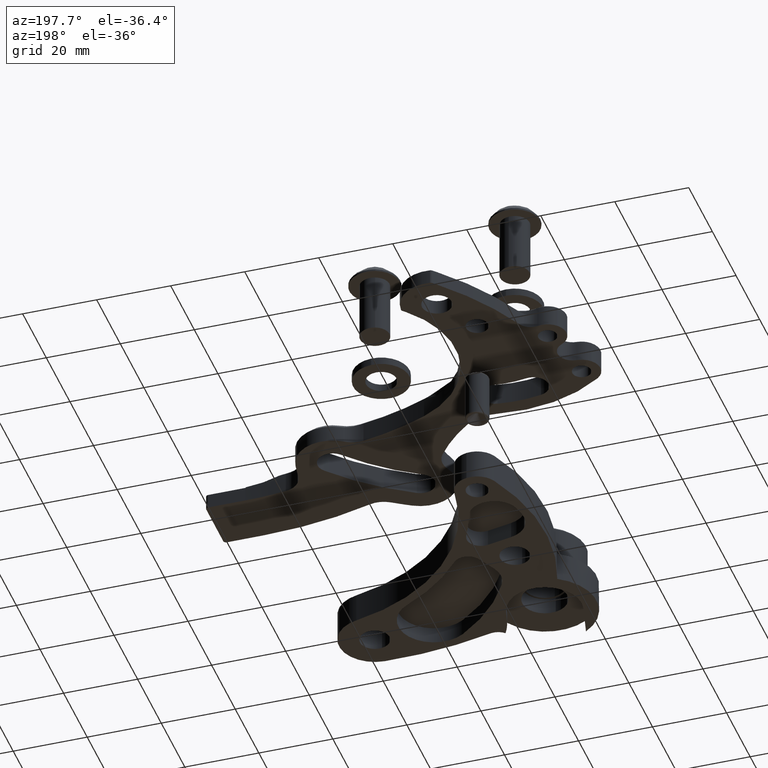
[diagram: clean part render]
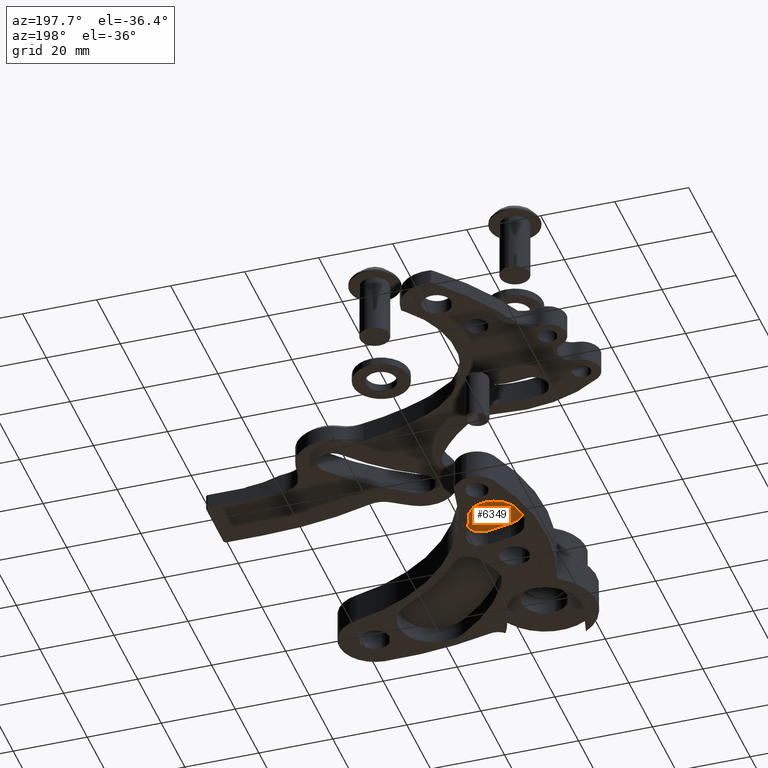
[diagram: same view with one face highlighted and labeled with its STEP entity id]
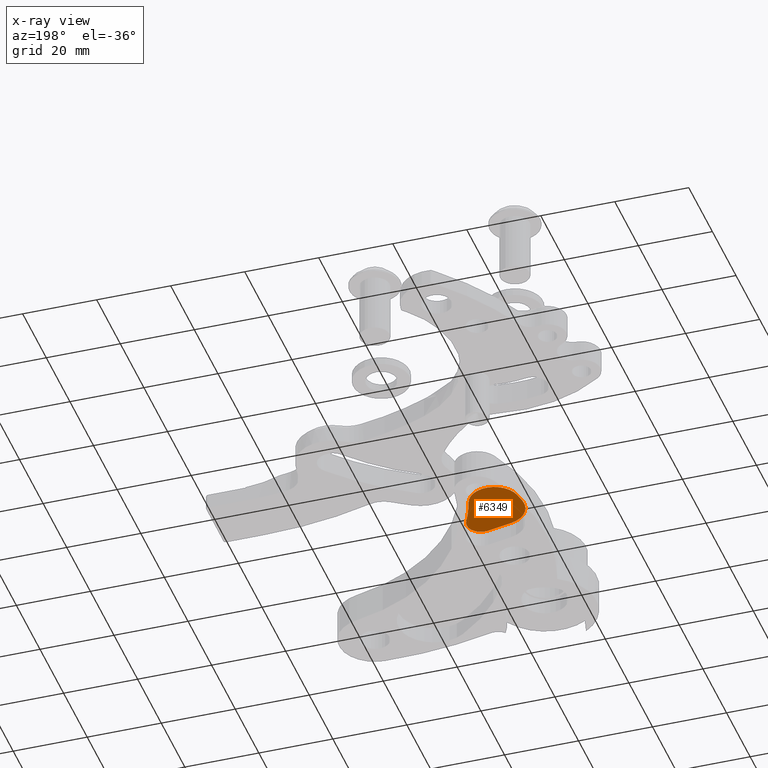
[diagram: x-ray of the same camera — body ghosted, the highlighted face saturated]
A machine part, auxiliary view. The second image highlights one B-rep face of the part: STEP entity #6349.
The next image is the same camera in x-ray: the body ghosted, the highlighted face saturated — about 0% of this face is hidden behind the body in this view.
In plain terms, the highlighted planar face has unit normal (0, 0, -1).
Its self-contained STEP definition (entity closure, byte-faithful):
#80 = DIRECTION ( 'NONE',  ( 1.000000000000000000, 0.0000000000000000000, 0.0000000000000000000 ) ) ;
#122 = DIRECTION ( 'NONE',  ( 1.000000000000000000, 0.0000000000000000000, 0.0000000000000000000 ) ) ;
#611 = VERTEX_POINT ( 'NONE', #3777 ) ;
#618 = AXIS2_PLACEMENT_3D ( 'NONE', #7497, #3789, #80 ) ;
#622 = EDGE_CURVE ( 'NONE', #767, #611, #7281, .T. ) ;
#648 = PLANE ( 'NONE',  #7341 ) ;
#738 = DIRECTION ( 'NONE',  ( 0.0000000000000000000, 0.0000000000000000000, 1.000000000000000000 ) ) ;
#767 = VERTEX_POINT ( 'NONE', #3342 ) ;
#833 = EDGE_CURVE ( 'NONE', #5392, #6231, #2812, .T. ) ;
#871 = DIRECTION ( 'NONE',  ( 0.0000000000000000000, 0.0000000000000000000, 1.000000000000000000 ) ) ;
#1007 = VECTOR ( 'NONE', #2198, 39.37007874015748143 ) ;
#1428 = AXIS2_PLACEMENT_3D ( 'NONE', #4418, #738, #5043 ) ;
#1524 = VERTEX_POINT ( 'NONE', #7485 ) ;
#1575 = CIRCLE ( 'NONE', #8035, 0.2629615186702531915 ) ;
#1680 = FACE_OUTER_BOUND ( 'NONE', #4444, .T. ) ;
#1699 = EDGE_CURVE ( 'NONE', #6231, #767, #2327, .T. ) ;
#1957 = EDGE_CURVE ( 'NONE', #6199, #1524, #7361, .T. ) ;
#2046 = ORIENTED_EDGE ( 'NONE', *, *, #1699, .T. ) ;
#2091 = CARTESIAN_POINT ( 'NONE',  ( 5.891786155126516711, -7.048399385013009777, -0.1771653543307086520 ) ) ;
#2198 = DIRECTION ( 'NONE',  ( 0.03106656399508397198, -0.9995173178097213063, -0.0000000000000000000 ) ) ;
#2327 = CIRCLE ( 'NONE', #2832, 0.2895186497047291807 ) ;
#2475 = DIRECTION ( 'NONE',  ( -0.0000000000000000000, -0.0000000000000000000, -1.000000000000000000 ) ) ;
#2661 = ORIENTED_EDGE ( 'NONE', *, *, #833, .T. ) ;
#2679 = DIRECTION ( 'NONE',  ( 1.000000000000000000, 0.0000000000000000000, 0.0000000000000000000 ) ) ;
#2812 = LINE ( 'NONE', #5882, #1007 ) ;
#2832 = AXIS2_PLACEMENT_3D ( 'NONE', #2091, #6392, #2679 ) ;
#2875 = EDGE_CURVE ( 'NONE', #611, #6199, #1575, .T. ) ;
#3205 = CARTESIAN_POINT ( 'NONE',  ( 5.832776280838907645, -6.665523734812476064, -0.1771653543307086520 ) ) ;
#3211 = ORIENTED_EDGE ( 'NONE', *, *, #622, .T. ) ;
#3342 = CARTESIAN_POINT ( 'NONE',  ( 5.890060344663274883, -7.337912890924382481, -0.1771653543307086520 ) ) ;
#3738 = ORIENTED_EDGE ( 'NONE', *, *, #6532, .T. ) ;
#3740 = DIRECTION ( 'NONE',  ( 1.000000000000000000, 0.0000000000000000000, -0.0000000000000000000 ) ) ;
#3777 = CARTESIAN_POINT ( 'NONE',  ( 6.004372715346415923, -7.335736338836440495, -0.1771653543307086520 ) ) ;
#3789 = DIRECTION ( 'NONE',  ( 0.0000000000000000000, 0.0000000000000000000, 1.000000000000000000 ) ) ;
#3819 = DIRECTION ( 'NONE',  ( 0.0000000000000000000, 0.0000000000000000000, 1.000000000000000000 ) ) ;
#3828 = AXIS2_PLACEMENT_3D ( 'NONE', #6179, #2475, #6812 ) ;
#3877 = AXIS2_PLACEMENT_3D ( 'NONE', #4572, #871, #5187 ) ;
#4152 = EDGE_CURVE ( 'NONE', #1524, #4306, #7226, .T. ) ;
#4306 = VERTEX_POINT ( 'NONE', #3205 ) ;
#4418 = CARTESIAN_POINT ( 'NONE',  ( 5.903692971494557185, -5.050970220932416765, -0.1771653543307086520 ) ) ;
#4444 = EDGE_LOOP ( 'NONE', ( #4555, #3738, #2661, #2046, #3211, #5445, #5164 ) ) ;
#4555 = ORIENTED_EDGE ( 'NONE', *, *, #4152, .T. ) ;
#4572 = CARTESIAN_POINT ( 'NONE',  ( 5.744059116766789153, -6.786475232526000489, -0.1771653543307086520 ) ) ;
#4912 = CARTESIAN_POINT ( 'NONE',  ( 5.594131519094850624, -6.791135217125276569, -0.1771653543307086520 ) ) ;
#5043 = DIRECTION ( 'NONE',  ( 1.000000000000000000, 0.0000000000000000000, 0.0000000000000000000 ) ) ;
#5164 = ORIENTED_EDGE ( 'NONE', *, *, #1957, .T. ) ;
#5187 = DIRECTION ( 'NONE',  ( 1.000000000000000000, 0.0000000000000000000, 0.0000000000000000000 ) ) ;
#5351 = CARTESIAN_POINT ( 'NONE',  ( 5.602407250917753601, -7.057393734671830288, -0.1771653543307086520 ) ) ;
#5392 = VERTEX_POINT ( 'NONE', #4912 ) ;
#5430 = CIRCLE ( 'NONE', #3877, 0.1500000000004800271 ) ;
#5445 = ORIENTED_EDGE ( 'NONE', *, *, #2875, .T. ) ;
#5882 = CARTESIAN_POINT ( 'NONE',  ( 5.602407250917753601, -7.057393734671830288, -0.1771653543307086520 ) ) ;
#6179 = CARTESIAN_POINT ( 'NONE',  ( 7.081488472039823456, -4.963106718685666330, -0.1771653543307086520 ) ) ;
#6199 = VERTEX_POINT ( 'NONE', #7170 ) ;
#6201 = CARTESIAN_POINT ( 'NONE',  ( 7.081488472039823456, -4.963106718685666330, -0.1771653543307086520 ) ) ;
#6231 = VERTEX_POINT ( 'NONE', #5351 ) ;
#6349 = ADVANCED_FACE ( 'NONE', ( #1680 ), #648, .T. ) ;
#6392 = DIRECTION ( 'NONE',  ( 0.0000000000000000000, 0.0000000000000000000, 1.000000000000000000 ) ) ;
#6532 = EDGE_CURVE ( 'NONE', #4306, #5392, #5430, .T. ) ;
#6812 = DIRECTION ( 'NONE',  ( 1.000000000000000000, 0.0000000000000000000, 0.0000000000000000000 ) ) ;
#7170 = CARTESIAN_POINT ( 'NONE',  ( 6.255757893114771484, -7.073029756062637396, -0.1771653543307086520 ) ) ;
#7226 = CIRCLE ( 'NONE', #3828, 2.111280614520993915 ) ;
#7281 = CIRCLE ( 'NONE', #1428, 2.286983302156861075 ) ;
#7341 = AXIS2_PLACEMENT_3D ( 'NONE', #6201, #7451, #3740 ) ;
#7361 = CIRCLE ( 'NONE', #618, 0.2629615186702531915 ) ;
#7451 = DIRECTION ( 'NONE',  ( 0.0000000000000000000, 0.0000000000000000000, 1.000000000000000000 ) ) ;
#7485 = CARTESIAN_POINT ( 'NONE',  ( 6.113375536673084198, -6.839343158377569232, -0.1771653543307086520 ) ) ;
#7497 = CARTESIAN_POINT ( 'NONE',  ( 5.992796374444518293, -7.073029756062637396, -0.1771653543307086520 ) ) ;
#7519 = CARTESIAN_POINT ( 'NONE',  ( 5.992796374444518293, -7.073029756062637396, -0.1771653543307086520 ) ) ;
#8035 = AXIS2_PLACEMENT_3D ( 'NONE', #7519, #3819, #122 ) ;